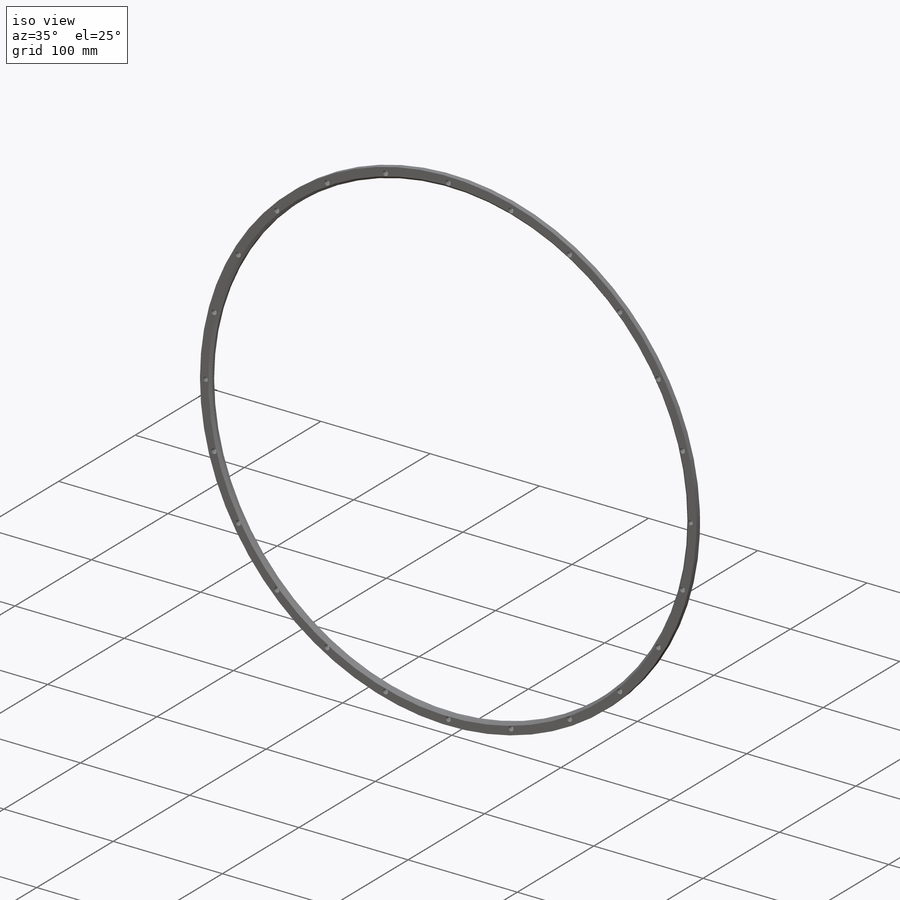
[diagram: iso view]
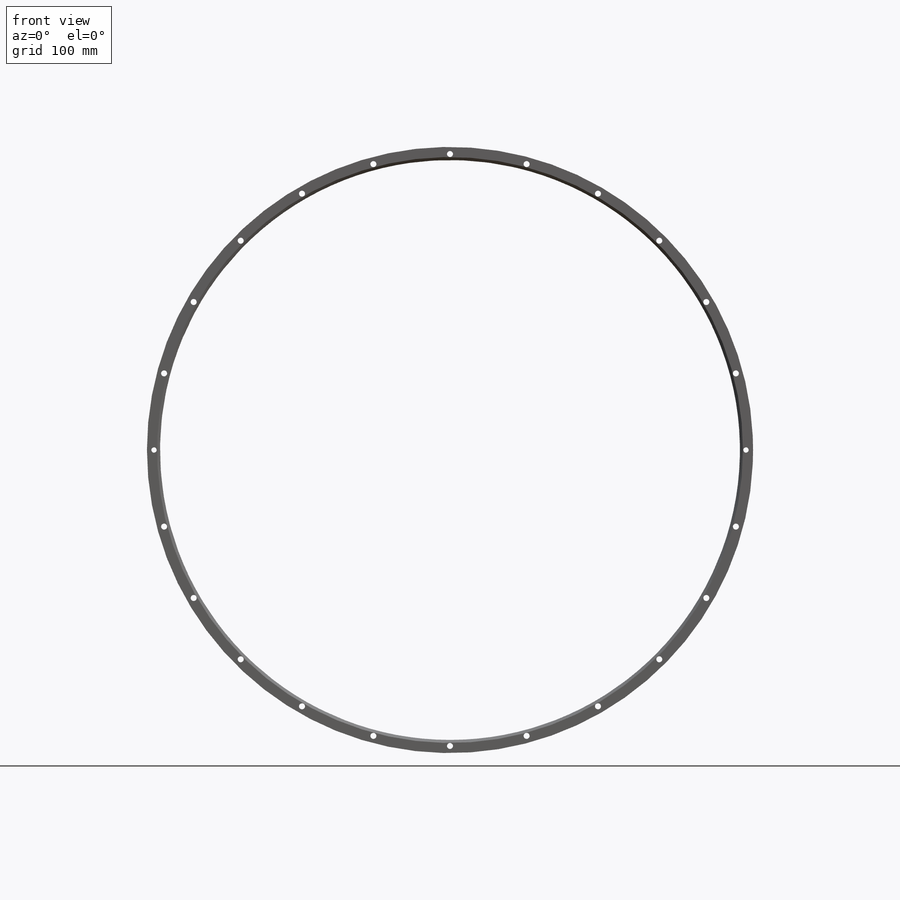
[diagram: front view]
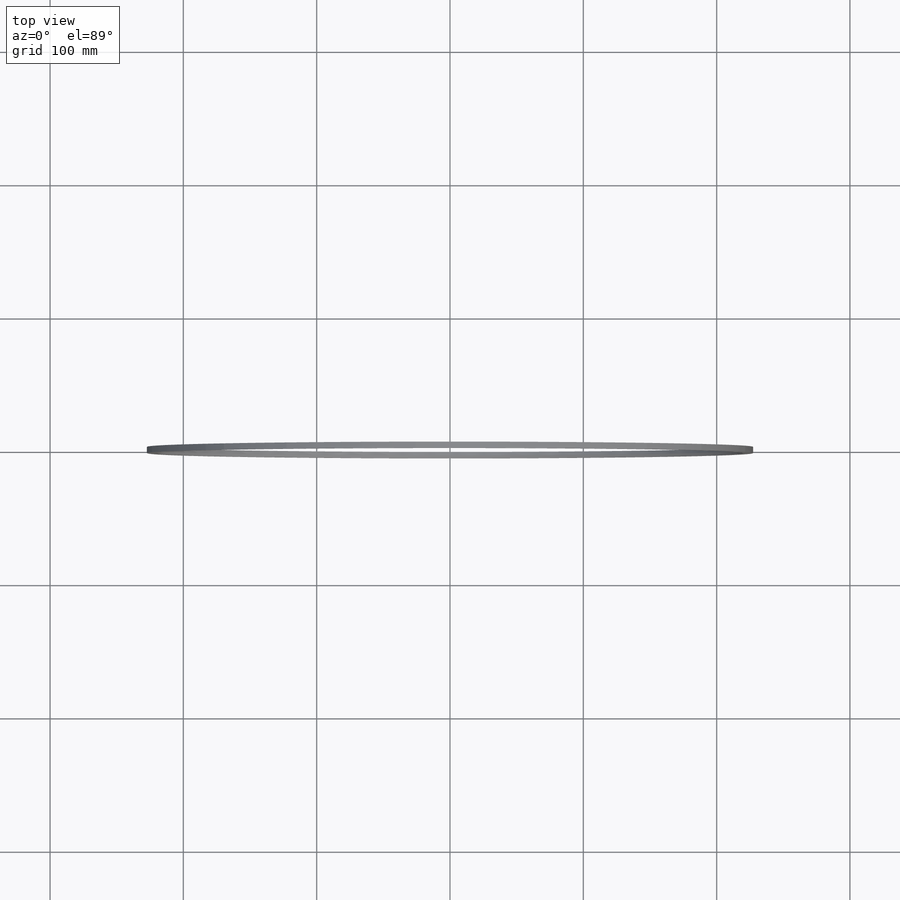
[diagram: top view]
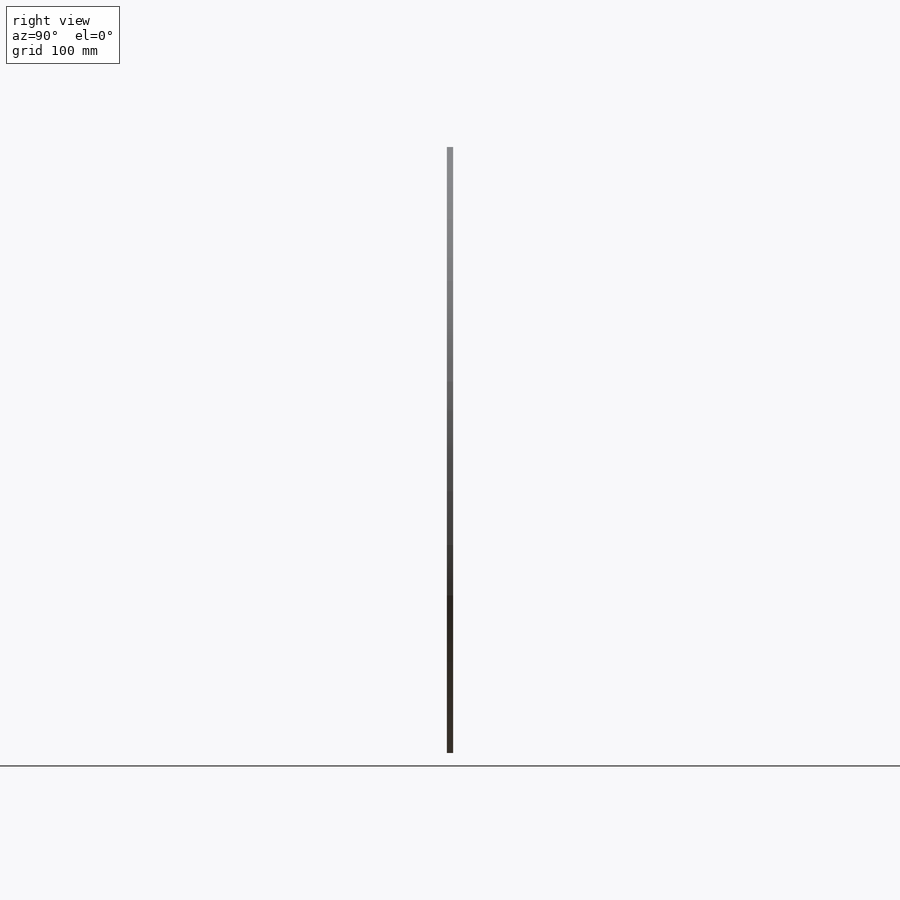
[diagram: right view]
SOLIDWORKS PART (.sldprt)
format: sldprt  version: not decoded by parser v0  size: 538,112 bytes
history: native  units: mm
features: sketch x10, extrude x4, cut_extrude x2, hole x2, material x1, pattern_circular x1, chamfer x1 (+11 scaffold rows collapsed)
feature tree (32):
  scaffold x11  (default folders/planes/origin — collapsed)
  material  "Isotropic CFRP"
  sketch  "Sketch1"  dims[c1.D1=432.0mm c1.D2=~100.453326mm c2.D1=454.65mm c2.D3=406.65mm c2.D2=24.0mm]
  extrude  "Extrude1"  Depth=4.7mm
  sketch  "Sketch2"  dims[D2=426.4mm D1=10.0mm]
  cut_extrude  "Extrude2"  [1 undecoded]
  hole  "M4 Clearance Hole1"  Diameter=4.5mm Depth=4.7mm
  sketch  "Sketch4"  dims[D1=222.0mm]
  sketch  "Sketch5"  dims[hole-wizard template sketch: 60 standard entries collapsed; hole parameters kept: c18.Thru Hole Depth=4.7mm]
  sketch  "Sketch6"  dims[D4=2.0mm D1=15.0mm D2=10.3mm D3=5.0mm]
  cut_extrude  "Cut-Extrude1"  Depth=3.3mm
  hole  "M4 Clearance Hole2"  Diameter=4.3mm Depth=5mm
  sketch  "Sketch8"  dims[D1=14.0mm]
  sketch  "Sketch9"  dims[hole-wizard template sketch: 60 standard entries collapsed; hole parameters kept: c18.Thru Hole Depth=5.0mm]
  pattern_circular  "CirPattern1"  Count=24 Angle=15deg
  sketch  "Sketch10"  dims[D1=4.0mm]
  extrude  "Boss-Extrude1"  [1 undecoded]
  sketch  "Sketch11"  dims[D1=4.0mm]
  extrude  "Boss-Extrude2"  [1 undecoded]
  chamfer  "Chamfer1"  Distance=2.1mm Angle=45deg
  sketch  "Sketch12"  dims[D1=0.75mm]
  extrude  "Boss-Extrude3 - INITIAL WATERJET EXTRA MATL ON OD"  [1 undecoded]
decode coverage: 16 of 20 modeling features carry decoded parameters
note: ~ marks probable driven/reference dimensions
note: 4 parameter values undecoded
summary: no parameter record found for 4 features
note: suppression state not decoded; provenance and decode notes live in map.json
